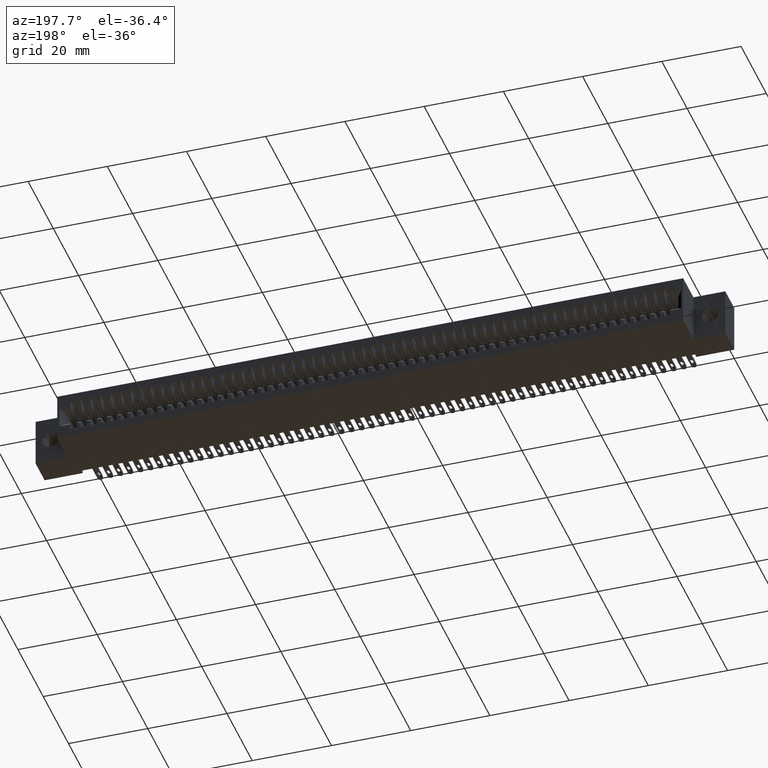
[diagram: clean part render]
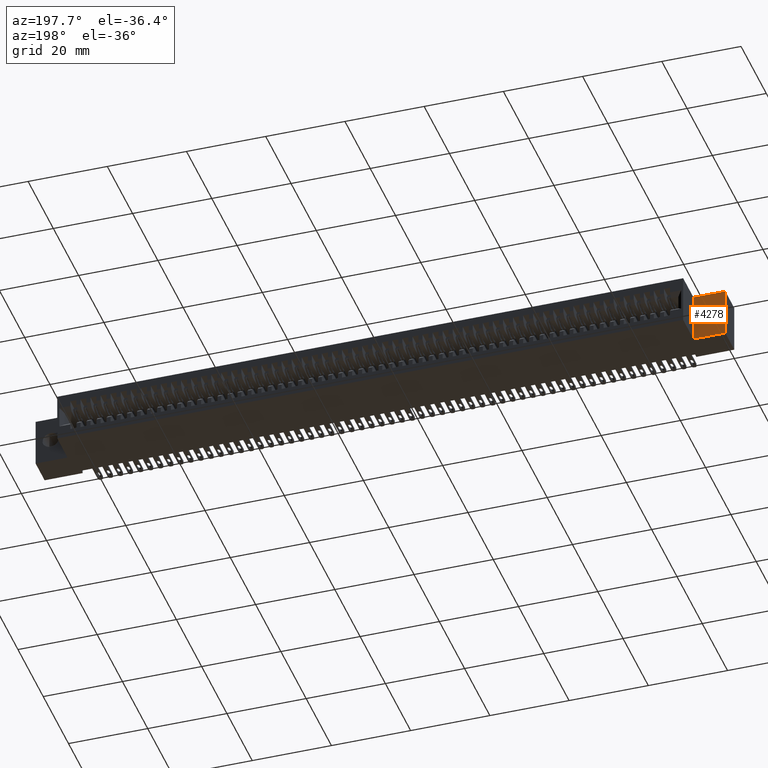
[diagram: same view with one face highlighted and labeled with its STEP entity id]
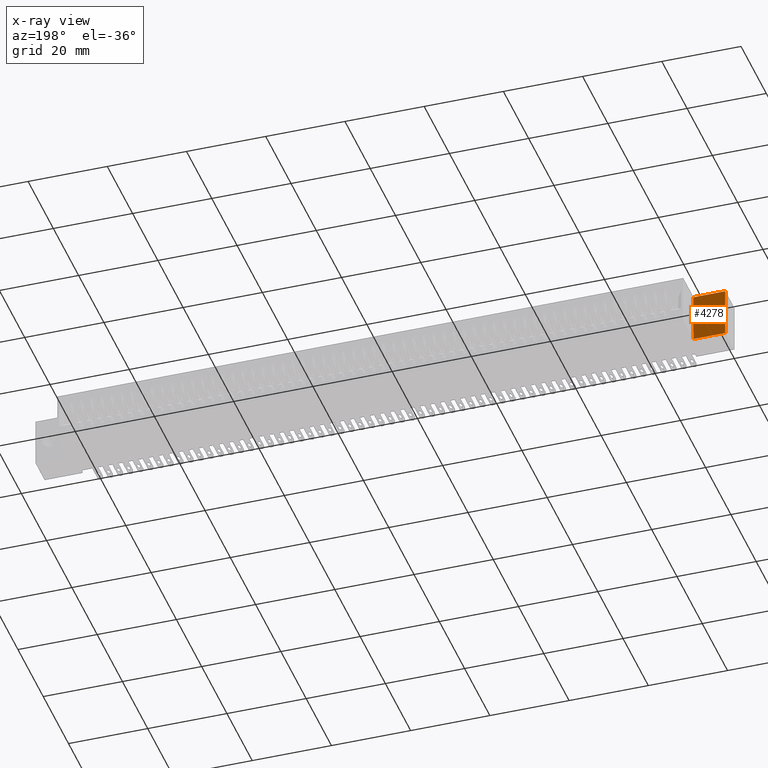
[diagram: x-ray of the same camera — body ghosted, the highlighted face saturated]
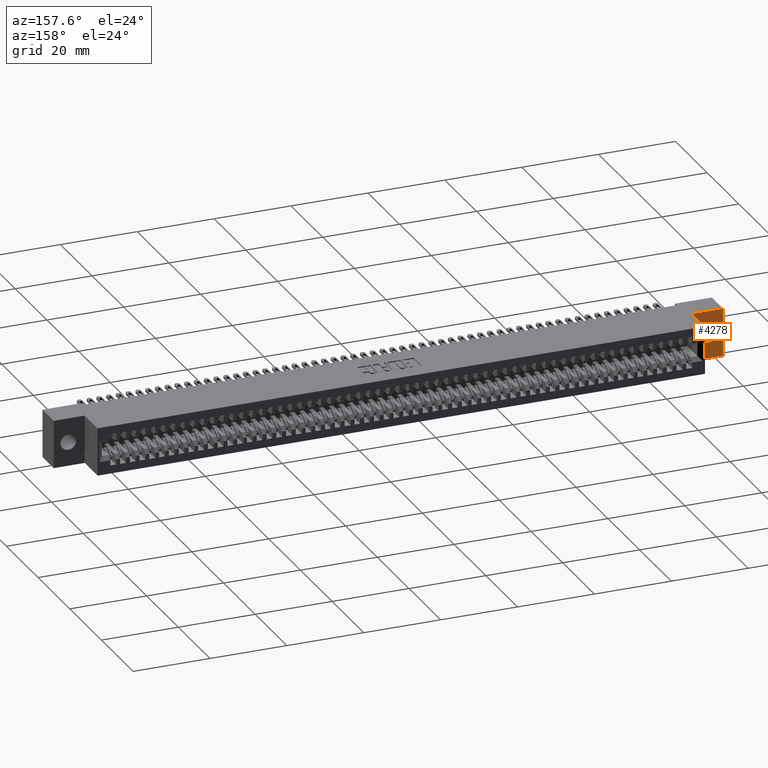
[diagram: same view with one face highlighted and labeled with its STEP entity id]
A machine part, auxiliary view. The second image highlights one B-rep face of the part: STEP entity #4278.
The next image is the same camera in x-ray: the body ghosted, the highlighted face saturated — about 0% of this face is hidden behind the body in this view.
A second angle (auxiliary view) of the same face is appended — the face is thin or edge-on in the first view.
In plain terms, the highlighted planar face has unit normal (0, 1, 0).
Its self-contained STEP definition (entity closure, byte-faithful):
#1224 = DIRECTION ( 'NONE',  ( 0.0000000000000000000, 0.0000000000000000000, 1.000000000000000000 ) ) ;
#1233 = VECTOR ( 'NONE', #3575, 39.37007874015748100 ) ;
#1237 = LINE ( 'NONE', #17691, #13021 ) ;
#1721 = ORIENTED_EDGE ( 'NONE', *, *, #15260, .T. ) ;
#2750 = CARTESIAN_POINT ( 'NONE',  ( 0.1495000000000000500, 0.2799999999999999700, -0.1650000000000000100 ) ) ;
#3317 = CARTESIAN_POINT ( 'NONE',  ( 0.1495000000000000500, 0.2799999999999999700, -0.2450000000000000000 ) ) ;
#3575 = DIRECTION ( 'NONE',  ( -1.000000000000000000, -0.0000000000000000000, -0.0000000000000000000 ) ) ;
#4278 = ADVANCED_FACE ( 'NONE', ( #10701, #28261 ), #27300, .T. ) ;
#5022 = LINE ( 'NONE', #14243, #33942 ) ;
#5412 = EDGE_CURVE ( 'NONE', #20356, #36076, #1237, .T. ) ;
#6094 = EDGE_LOOP ( 'NONE', ( #12548, #22736 ) ) ;
#7103 = CARTESIAN_POINT ( 'NONE',  ( 0.1495000000000000500, 0.2799999999999999700, -0.2450000000000000000 ) ) ;
#8672 = EDGE_CURVE ( 'NONE', #17111, #27673, #24581, .T. ) ;
#9098 = AXIS2_PLACEMENT_3D ( 'NONE', #30626, #24742, #28022 ) ;
#9124 = CARTESIAN_POINT ( 'NONE',  ( 0.3165000000000000000, 0.2799999999999999700, -0.4899999999999999900 ) ) ;
#10475 = CARTESIAN_POINT ( 'NONE',  ( 0.3165000000000000000, 0.2799999999999999700, -0.4899999999999999900 ) ) ;
#10701 = FACE_BOUND ( 'NONE', #6094, .T. ) ;
#11719 = AXIS2_PLACEMENT_3D ( 'NONE', #3317, #14302, #34294 ) ;
#12091 = CIRCLE ( 'NONE', #21757, 0.07999999999999996000 ) ;
#12548 = ORIENTED_EDGE ( 'NONE', *, *, #8672, .F. ) ;
#13021 = VECTOR ( 'NONE', #20519, 39.37007874015748100 ) ;
#14243 = CARTESIAN_POINT ( 'NONE',  ( 0.0000000000000000000, 0.2799999999999999700, -0.4899999999999999900 ) ) ;
#14302 = DIRECTION ( 'NONE',  ( 0.0000000000000000000, 1.000000000000000000, 0.0000000000000000000 ) ) ;
#14703 = VERTEX_POINT ( 'NONE', #27494 ) ;
#15260 = EDGE_CURVE ( 'NONE', #14703, #20356, #5022, .T. ) ;
#17111 = VERTEX_POINT ( 'NONE', #2750 ) ;
#17691 = CARTESIAN_POINT ( 'NONE',  ( -2.134256245050205600E-018, 0.2799999999999999700, 0.0000000000000000000 ) ) ;
#17779 = EDGE_CURVE ( 'NONE', #36076, #31356, #24168, .T. ) ;
#18891 = EDGE_CURVE ( 'NONE', #27673, #17111, #12091, .T. ) ;
#19624 = LINE ( 'NONE', #28693, #1233 ) ;
#20356 = VERTEX_POINT ( 'NONE', #28388 ) ;
#20519 = DIRECTION ( 'NONE',  ( 1.000000000000000000, 0.0000000000000000000, 0.0000000000000000000 ) ) ;
#21252 = DIRECTION ( 'NONE',  ( -1.393799996767481300E-016, -0.0000000000000000000, -1.000000000000000000 ) ) ;
#21533 = CARTESIAN_POINT ( 'NONE',  ( 0.1495000000000000800, 0.2799999999999999700, -0.3249999999999999600 ) ) ;
#21757 = AXIS2_PLACEMENT_3D ( 'NONE', #7103, #26168, #1224 ) ;
#21994 = VECTOR ( 'NONE', #21252, 39.37007874015748100 ) ;
#22709 = DIRECTION ( 'NONE',  ( -4.355624989898379100E-018, 0.0000000000000000000, 1.000000000000000000 ) ) ;
#22736 = ORIENTED_EDGE ( 'NONE', *, *, #18891, .F. ) ;
#23300 = ORIENTED_EDGE ( 'NONE', *, *, #5412, .T. ) ;
#24168 = LINE ( 'NONE', #9124, #21994 ) ;
#24406 = ORIENTED_EDGE ( 'NONE', *, *, #17779, .T. ) ;
#24428 = EDGE_CURVE ( 'NONE', #31356, #14703, #19624, .T. ) ;
#24581 = CIRCLE ( 'NONE', #11719, 0.07999999999999996000 ) ;
#24742 = DIRECTION ( 'NONE',  ( 0.0000000000000000000, 1.000000000000000000, -0.0000000000000000000 ) ) ;
#26168 = DIRECTION ( 'NONE',  ( 0.0000000000000000000, 1.000000000000000000, 0.0000000000000000000 ) ) ;
#27300 = PLANE ( 'NONE',  #9098 ) ;
#27494 = CARTESIAN_POINT ( 'NONE',  ( 0.0000000000000000000, 0.2799999999999999700, -0.4899999999999999900 ) ) ;
#27673 = VERTEX_POINT ( 'NONE', #21533 ) ;
#28022 = DIRECTION ( 'NONE',  ( 0.0000000000000000000, 0.0000000000000000000, 1.000000000000000000 ) ) ;
#28102 = ORIENTED_EDGE ( 'NONE', *, *, #24428, .T. ) ;
#28261 = FACE_OUTER_BOUND ( 'NONE', #29630, .T. ) ;
#28388 = CARTESIAN_POINT ( 'NONE',  ( -2.134256245050205600E-018, 0.2799999999999999700, 0.0000000000000000000 ) ) ;
#28693 = CARTESIAN_POINT ( 'NONE',  ( 0.0000000000000000000, 0.2799999999999999700, -0.4899999999999999900 ) ) ;
#29630 = EDGE_LOOP ( 'NONE', ( #1721, #23300, #24406, #28102 ) ) ;
#30626 = CARTESIAN_POINT ( 'NONE',  ( -2.134256245050205600E-018, 0.2799999999999999700, 0.0000000000000000000 ) ) ;
#31356 = VERTEX_POINT ( 'NONE', #10475 ) ;
#33942 = VECTOR ( 'NONE', #22709, 39.37007874015748100 ) ;
#34294 = DIRECTION ( 'NONE',  ( 0.0000000000000000000, 0.0000000000000000000, 1.000000000000000000 ) ) ;
#35447 = CARTESIAN_POINT ( 'NONE',  ( 0.3165000000000001100, 0.2799999999999999700, 0.0000000000000000000 ) ) ;
#36076 = VERTEX_POINT ( 'NONE', #35447 ) ;